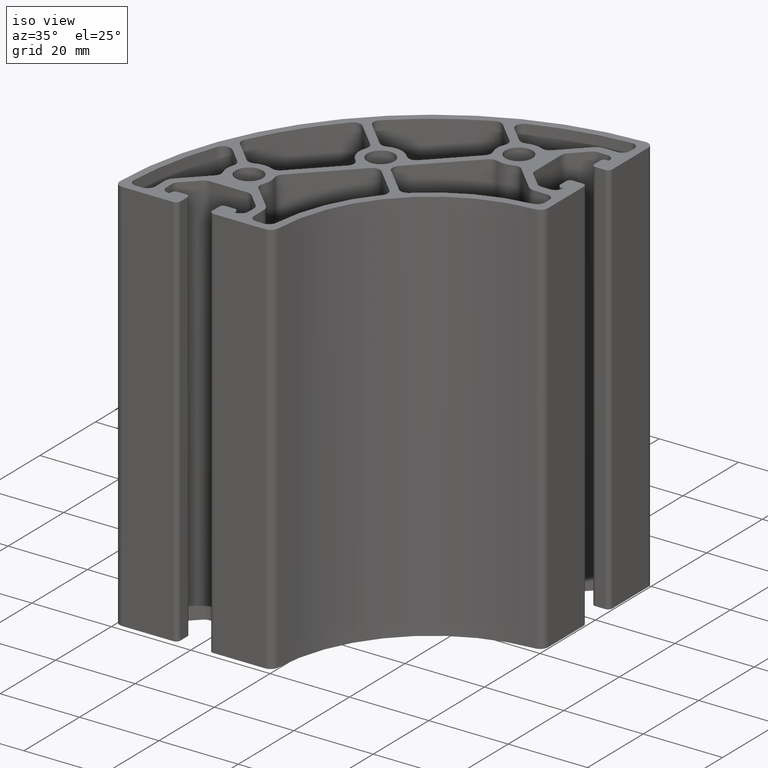
[diagram: clean part render]
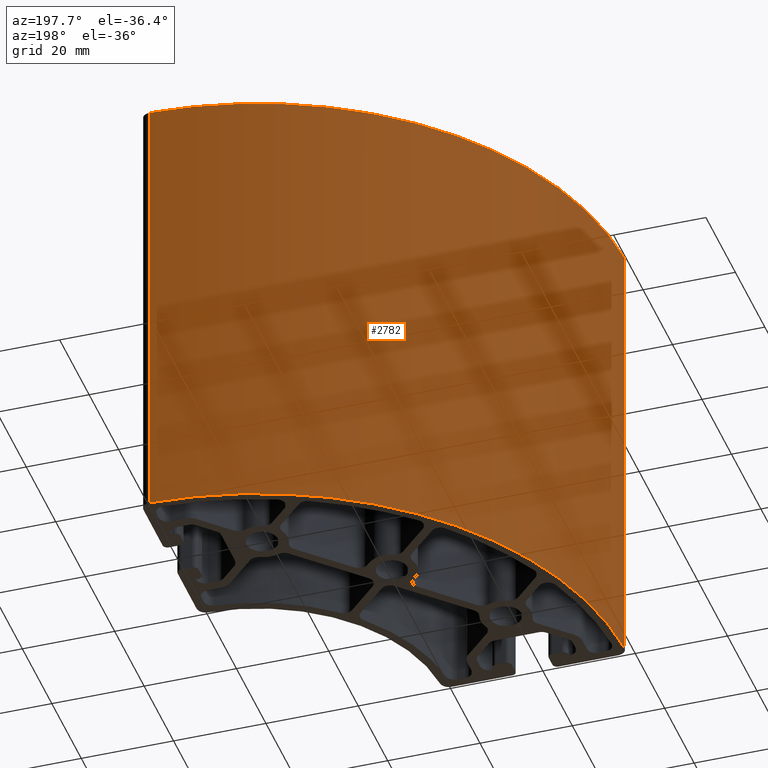
[diagram: tour spotlight — one face highlighted and labeled with its STEP entity id]
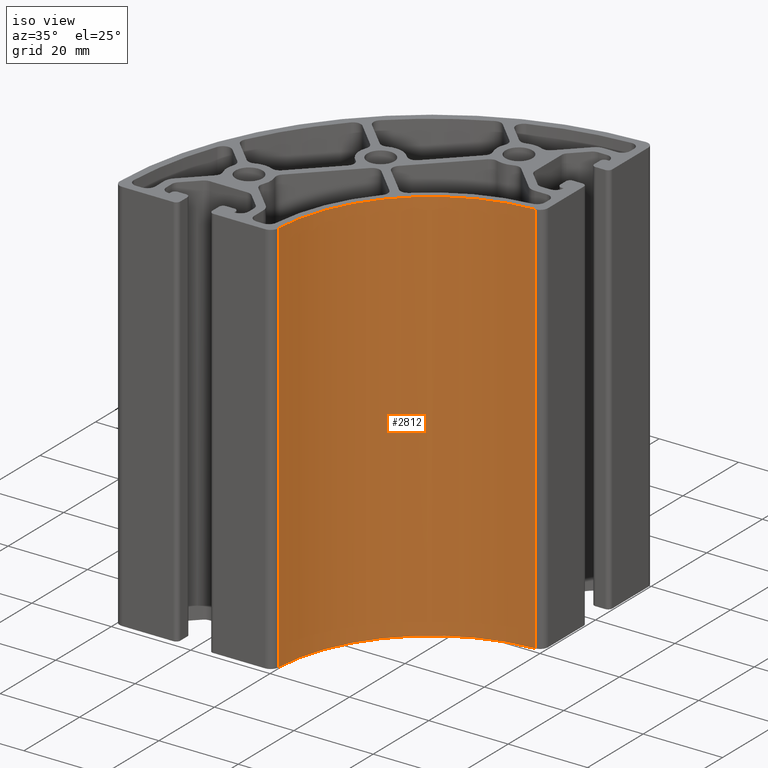
[diagram: tour spotlight — one face highlighted and labeled with its STEP entity id]
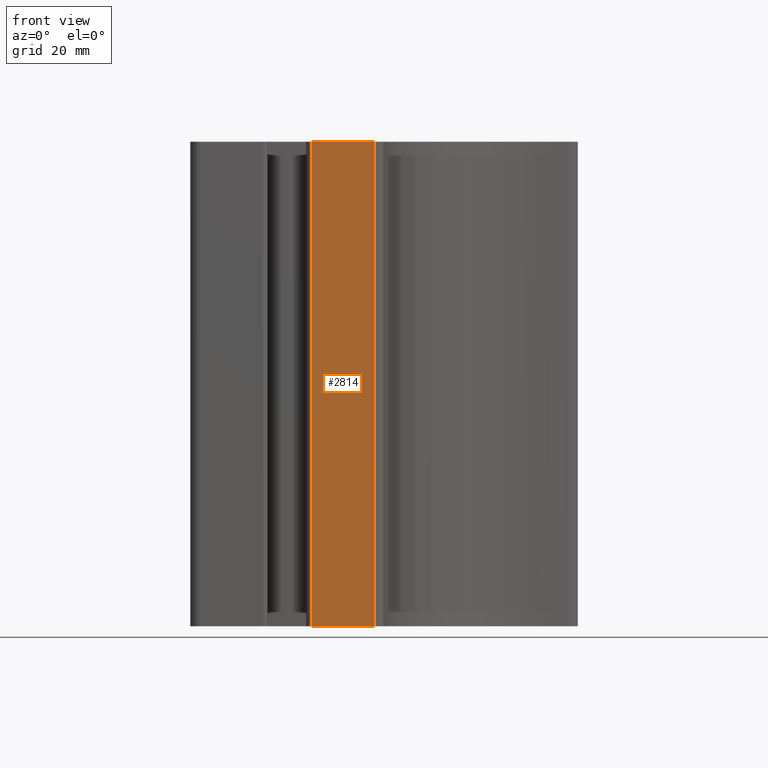
[diagram: tour spotlight — one face highlighted and labeled with its STEP entity id]
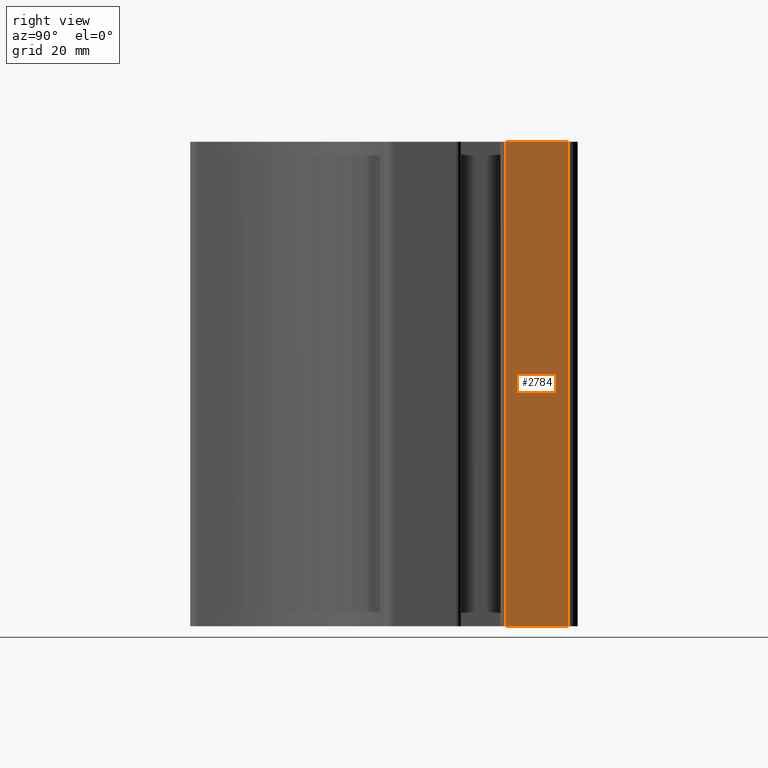
[diagram: tour spotlight — one face highlighted and labeled with its STEP entity id]
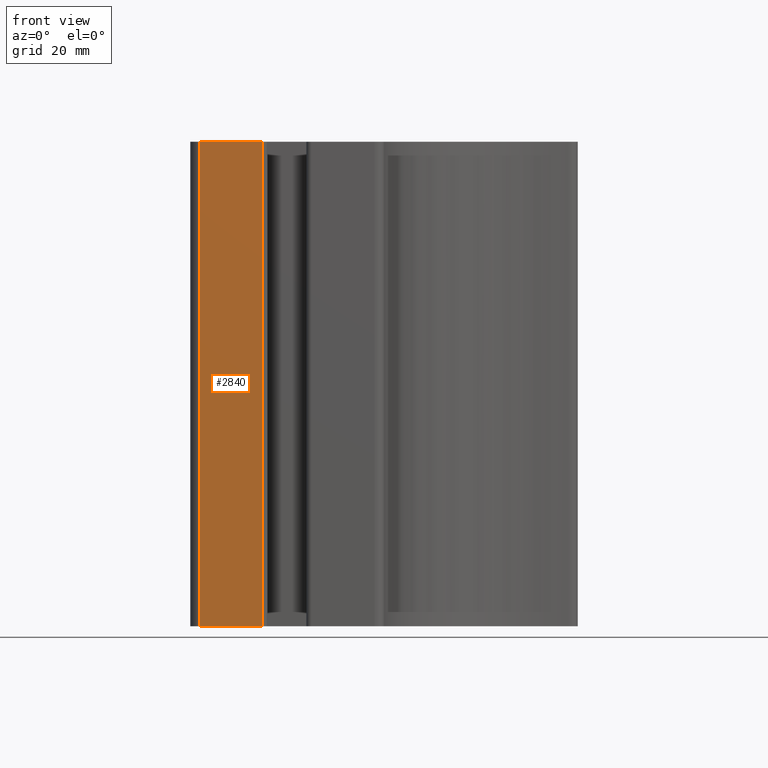
[diagram: tour spotlight — one face highlighted and labeled with its STEP entity id]
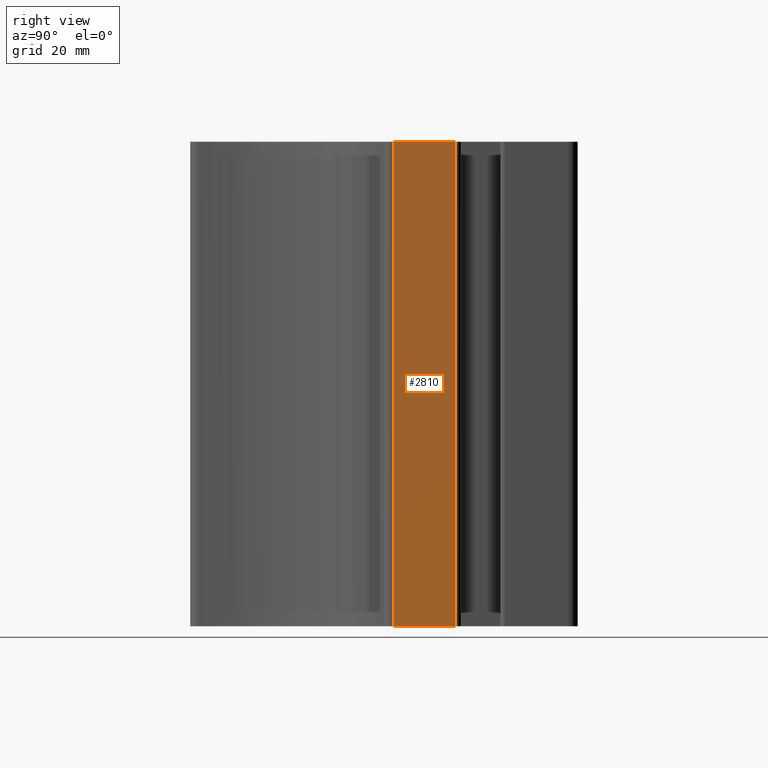
[diagram: tour spotlight — one face highlighted and labeled with its STEP entity id]
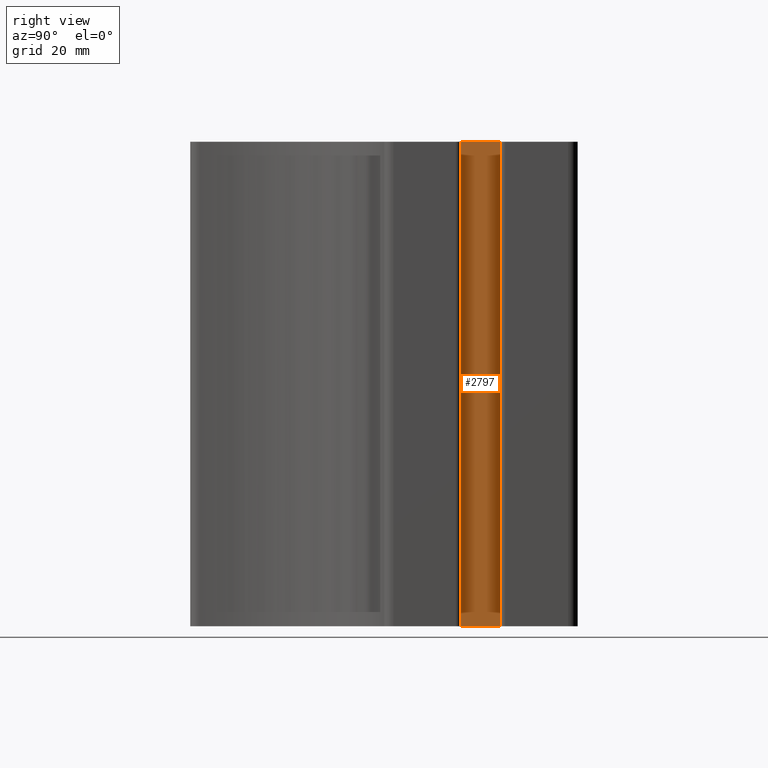
[diagram: tour spotlight — one face highlighted and labeled with its STEP entity id]
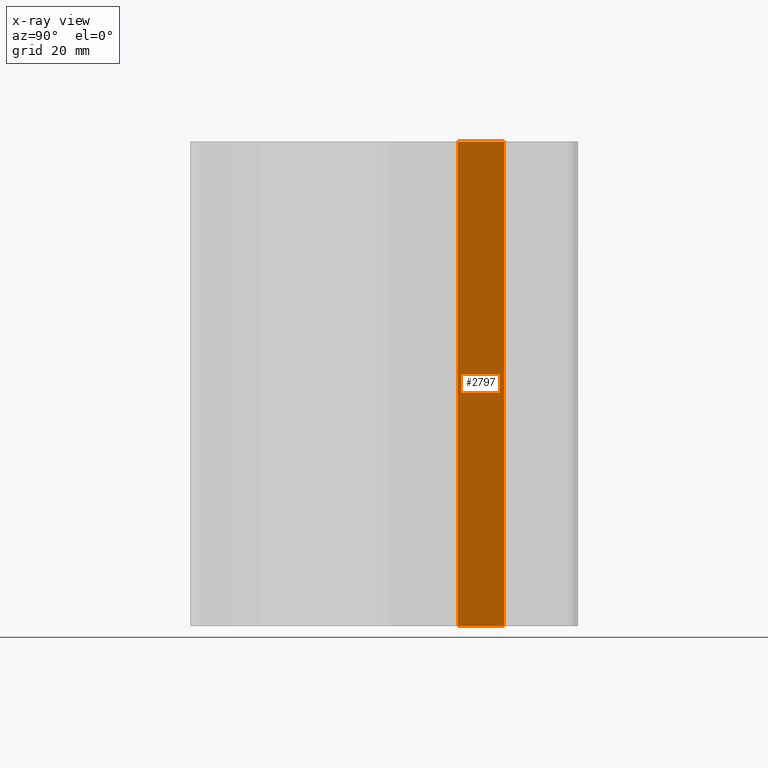
[diagram: x-ray of the same camera — body ghosted, this tour face saturated]
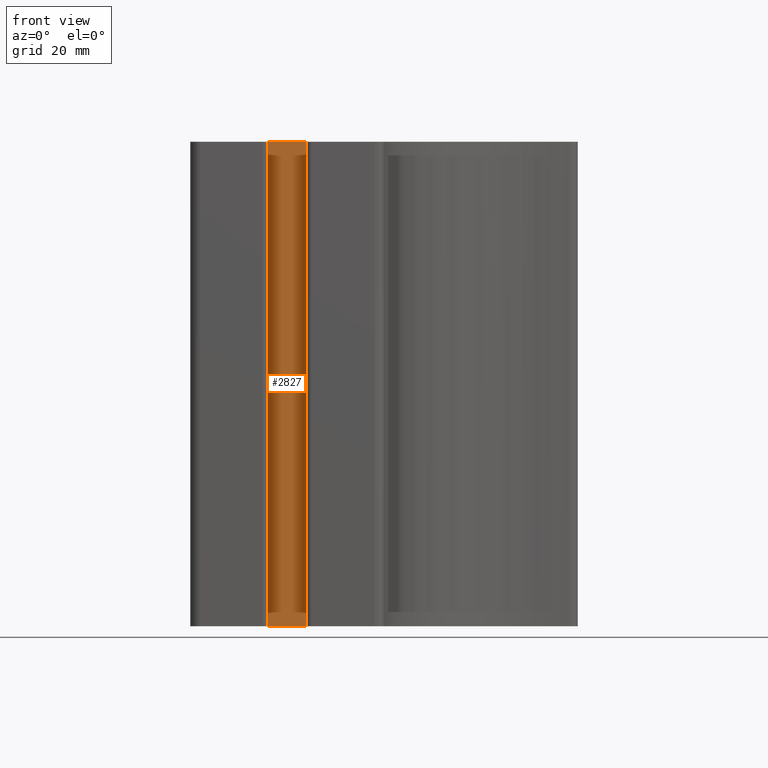
[diagram: tour spotlight — one face highlighted and labeled with its STEP entity id]
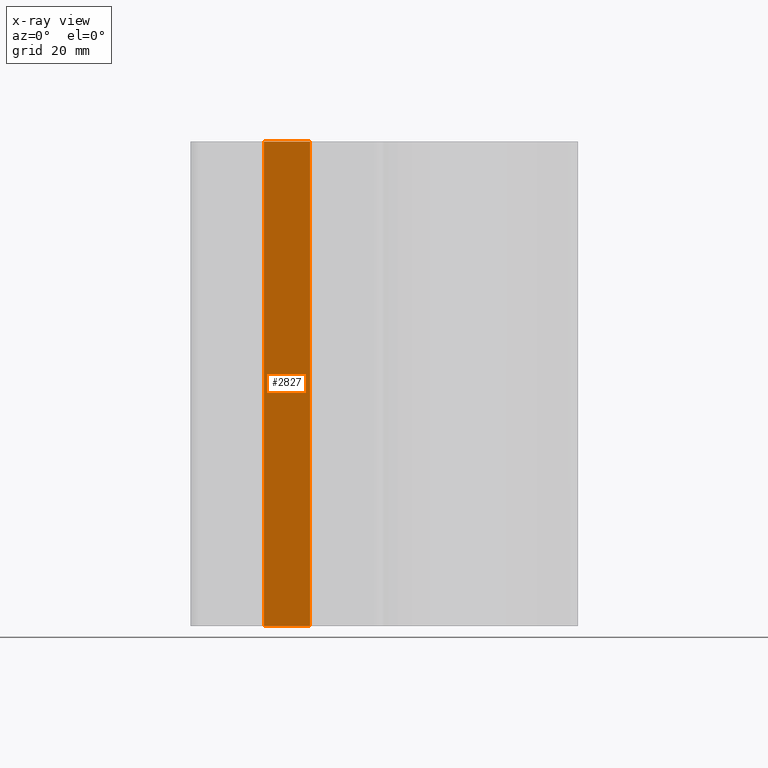
[diagram: x-ray of the same camera — body ghosted, this tour face saturated]
A machine part: a face-by-face anatomy tour. The part has 143 B-rep faces; the first image is the clean iso view, then the 8 largest visible faces are spotlighted one at a time (largest first), each with its STEP entity span.

Face 1 — auxiliary view, entity #2782. In plain terms, the highlighted cylindrical surface (partial cylindrical patch) has radius 80 mm, axis along (0, 0, 1).
Definition (entity closure, byte-faithful):
#150=CIRCLE('',#3044,79.9999999999985);
#151=CIRCLE('',#3045,79.9999999999985);
#266=CYLINDRICAL_SURFACE('',#3043,79.9999999999985);
#377=FACE_OUTER_BOUND('',#521,.T.);
#521=EDGE_LOOP('',(#2126,#2127,#2128,#2129));
#729=LINE('',#4540,#977);
#730=LINE('',#4546,#978);
#977=VECTOR('',#3689,100.);
#978=VECTOR('',#3696,100.);
#1259=VERTEX_POINT('',#4534);
#1261=VERTEX_POINT('',#4538);
#1262=VERTEX_POINT('',#4542);
#1263=VERTEX_POINT('',#4544);
#1623=EDGE_CURVE('',#1259,#1261,#729,.T.);
#1624=EDGE_CURVE('',#1259,#1262,#150,.T.);
#1625=EDGE_CURVE('',#1263,#1261,#151,.T.);
#1626=EDGE_CURVE('',#1262,#1263,#730,.T.);
#2126=ORIENTED_EDGE('',*,*,#1624,.F.);
#2127=ORIENTED_EDGE('',*,*,#1623,.T.);
#2128=ORIENTED_EDGE('',*,*,#1625,.F.);
#2129=ORIENTED_EDGE('',*,*,#1626,.F.);
#2782=ADVANCED_FACE('',(#377),#266,.T.);
#3043=AXIS2_PLACEMENT_3D('',#4541,#3690,#3691);
#3044=AXIS2_PLACEMENT_3D('',#4543,#3692,#3693);
#3045=AXIS2_PLACEMENT_3D('',#4545,#3694,#3695);
#3689=DIRECTION('',(0.,0.,1.));
#3690=DIRECTION('center_axis',(0.,0.,1.));
#3691=DIRECTION('ref_axis',(0.0258378402501432,-0.999666147276784,0.));
#3692=DIRECTION('center_axis',(0.,0.,-1.));
#3693=DIRECTION('ref_axis',(0.0258378402501432,-0.999666147276784,0.));
#3694=DIRECTION('center_axis',(0.,0.,1.));
#3695=DIRECTION('ref_axis',(0.0258378402501432,-0.999666147276784,0.));
#3696=DIRECTION('',(0.,0.,1.));
#4534=CARTESIAN_POINT('',(-37.5316414771536,-40.4148337507493,0.));
#4538=CARTESIAN_POINT('',(-37.5316414771536,-40.4148337507493,100.));
#4540=CARTESIAN_POINT('',(-37.5316414771536,-40.4148337507493,0.));
#4541=CARTESIAN_POINT('Origin',(42.4417621116551,-42.4775306313547,0.));
#4542=CARTESIAN_POINT('',(40.3747348916437,37.4957611507865,0.));
#4543=CARTESIAN_POINT('Origin',(42.4417621116551,-42.4775306313547,0.));
#4544=CARTESIAN_POINT('',(40.3747348916437,37.4957611507865,100.));
#4545=CARTESIAN_POINT('Origin',(42.4417621116551,-42.4775306313547,100.));
#4546=CARTESIAN_POINT('',(40.3747348916437,37.4957611507865,0.));

Face 2 — iso view, entity #2812. In plain terms, the highlighted cylindrical surface (partial cylindrical patch) has radius 40 mm, axis along (0, 0, 1).
Definition (entity closure, byte-faithful):
#180=CIRCLE('',#3104,40.);
#181=CIRCLE('',#3105,40.);
#281=CYLINDRICAL_SURFACE('',#3103,40.);
#407=FACE_OUTER_BOUND('',#551,.T.);
#551=EDGE_LOOP('',(#2246,#2247,#2248,#2249));
#789=LINE('',#4720,#1037);
#790=LINE('',#4726,#1038);
#1037=VECTOR('',#3869,100.);
#1038=VECTOR('',#3876,100.);
#1320=VERTEX_POINT('',#4716);
#1321=VERTEX_POINT('',#4718);
#1322=VERTEX_POINT('',#4722);
#1323=VERTEX_POINT('',#4724);
#1713=EDGE_CURVE('',#1320,#1321,#789,.T.);
#1714=EDGE_CURVE('',#1320,#1322,#180,.T.);
#1715=EDGE_CURVE('',#1323,#1321,#181,.T.);
#1716=EDGE_CURVE('',#1322,#1323,#790,.T.);
#2246=ORIENTED_EDGE('',*,*,#1714,.F.);
#2247=ORIENTED_EDGE('',*,*,#1713,.T.);
#2248=ORIENTED_EDGE('',*,*,#1715,.F.);
#2249=ORIENTED_EDGE('',*,*,#1716,.F.);
#2812=ADVANCED_FACE('',(#407),#281,.F.);
#3103=AXIS2_PLACEMENT_3D('',#4721,#3870,#3871);
#3104=AXIS2_PLACEMENT_3D('',#4723,#3872,#3873);
#3105=AXIS2_PLACEMENT_3D('',#4725,#3874,#3875);
#3869=DIRECTION('',(0.,0.,1.));
#3870=DIRECTION('center_axis',(0.,0.,1.));
#3871=DIRECTION('ref_axis',(-0.0479845656306172,0.99884807726763,0.));
#3872=DIRECTION('center_axis',(0.,0.,1.));
#3873=DIRECTION('ref_axis',(-0.0479845656306172,0.99884807726763,0.));
#3874=DIRECTION('center_axis',(0.,0.,-1.));
#3875=DIRECTION('ref_axis',(-0.0479845656306172,0.99884807726763,0.));
#3876=DIRECTION('',(0.,0.,1.));
#4716=CARTESIAN_POINT('',(40.5223794864304,-2.52360754064946,0.));
#4718=CARTESIAN_POINT('',(40.5223794864304,-2.52360754064946,100.));
#4720=CARTESIAN_POINT('',(40.5223794864304,-2.52360754064946,0.));
#4721=CARTESIAN_POINT('Origin',(42.4417621116551,-42.4775306313547,0.));
#4722=CARTESIAN_POINT('',(2.48764605386844,-40.5621690360114,0.));
#4723=CARTESIAN_POINT('Origin',(42.4417621116551,-42.4775306313547,0.));
#4724=CARTESIAN_POINT('',(2.48764605386844,-40.5621690360114,100.));
#4725=CARTESIAN_POINT('Origin',(42.4417621116551,-42.4775306313547,100.));
#4726=CARTESIAN_POINT('',(2.48764605386844,-40.5621690360114,0.));

Face 3 — front view, entity #2814. In plain terms, the highlighted planar face has unit normal (-0, -1, 0).
Definition (entity closure, byte-faithful):
#409=FACE_OUTER_BOUND('',#553,.T.);
#553=EDGE_LOOP('',(#2254,#2255,#2256,#2257));
#791=LINE('',#4732,#1039);
#792=LINE('',#4735,#1040);
#793=LINE('',#4737,#1041);
#794=LINE('',#4738,#1042);
#1039=VECTOR('',#3883,100.);
#1040=VECTOR('',#3886,13.0464715569881);
#1041=VECTOR('',#3887,13.0464715569881);
#1042=VECTOR('',#3888,100.);
#1324=VERTEX_POINT('',#4728);
#1325=VERTEX_POINT('',#4730);
#1326=VERTEX_POINT('',#4734);
#1327=VERTEX_POINT('',#4736);
#1719=EDGE_CURVE('',#1324,#1325,#791,.T.);
#1720=EDGE_CURVE('',#1324,#1326,#792,.T.);
#1721=EDGE_CURVE('',#1327,#1325,#793,.T.);
#1722=EDGE_CURVE('',#1326,#1327,#794,.T.);
#2254=ORIENTED_EDGE('',*,*,#1720,.F.);
#2255=ORIENTED_EDGE('',*,*,#1719,.T.);
#2256=ORIENTED_EDGE('',*,*,#1721,.F.);
#2257=ORIENTED_EDGE('',*,*,#1722,.F.);
#2683=PLANE('',#3109);
#2814=ADVANCED_FACE('',(#409),#2683,.T.);
#3109=AXIS2_PLACEMENT_3D('',#4733,#3884,#3885);
#3883=DIRECTION('',(0.,0.,1.));
#3884=DIRECTION('center_axis',(-6.80780558805105E-16,-1.,0.));
#3885=DIRECTION('ref_axis',(1.,-7.105427357601E-16,0.));
#3886=DIRECTION('',(-1.,6.80780558805105E-16,0.));
#3887=DIRECTION('',(1.,-6.80780558805105E-16,0.));
#3888=DIRECTION('',(0.,0.,1.));
#4728=CARTESIAN_POINT('',(0.489943186753274,-42.4663981578367,0.));
#4730=CARTESIAN_POINT('',(0.489943186753274,-42.4663981578367,100.));
#4732=CARTESIAN_POINT('',(0.489943186753274,-42.4663981578367,0.));
#4733=CARTESIAN_POINT('Origin',(-12.5565283702348,-42.4663981578367,0.));
#4734=CARTESIAN_POINT('',(-12.5565283702348,-42.4663981578367,0.));
#4735=CARTESIAN_POINT('',(0.489943186753274,-42.4663981578367,0.));
#4736=CARTESIAN_POINT('',(-12.5565283702348,-42.4663981578367,100.));
#4737=CARTESIAN_POINT('',(0.489943186753274,-42.4663981578367,100.));
#4738=CARTESIAN_POINT('',(-12.5565283702348,-42.4663981578367,0.));

Face 4 — right view, entity #2784. In plain terms, the highlighted planar face has unit normal (1, 0, 0).
Definition (entity closure, byte-faithful):
#379=FACE_OUTER_BOUND('',#523,.T.);
#523=EDGE_LOOP('',(#2134,#2135,#2136,#2137));
#731=LINE('',#4552,#979);
#732=LINE('',#4555,#980);
#733=LINE('',#4557,#981);
#734=LINE('',#4558,#982);
#979=VECTOR('',#3703,100.);
#980=VECTOR('',#3706,12.9591205125071);
#981=VECTOR('',#3707,12.9591205125071);
#982=VECTOR('',#3708,100.);
#1264=VERTEX_POINT('',#4548);
#1265=VERTEX_POINT('',#4550);
#1266=VERTEX_POINT('',#4554);
#1267=VERTEX_POINT('',#4556);
#1629=EDGE_CURVE('',#1264,#1265,#731,.T.);
#1630=EDGE_CURVE('',#1264,#1266,#732,.T.);
#1631=EDGE_CURVE('',#1267,#1265,#733,.T.);
#1632=EDGE_CURVE('',#1266,#1267,#734,.T.);
#2134=ORIENTED_EDGE('',*,*,#1630,.F.);
#2135=ORIENTED_EDGE('',*,*,#1629,.T.);
#2136=ORIENTED_EDGE('',*,*,#1631,.F.);
#2137=ORIENTED_EDGE('',*,*,#1632,.F.);
#2668=PLANE('',#3049);
#2784=ADVANCED_FACE('',(#379),#2668,.T.);
#3049=AXIS2_PLACEMENT_3D('',#4553,#3704,#3705);
#3703=DIRECTION('',(0.,0.,1.));
#3704=DIRECTION('center_axis',(1.,0.,0.));
#3705=DIRECTION('ref_axis',(0.,1.,0.));
#3706=DIRECTION('',(0.,-1.,0.));
#3707=DIRECTION('',(0.,1.,0.));
#3708=DIRECTION('',(0.,0.,1.));
#4548=CARTESIAN_POINT('',(42.4264075570571,35.4964317943973,0.));
#4550=CARTESIAN_POINT('',(42.4264075570571,35.4964317943973,100.));
#4552=CARTESIAN_POINT('',(42.4264075570571,35.4964317943973,0.));
#4553=CARTESIAN_POINT('Origin',(42.4264075570571,22.5373112818901,0.));
#4554=CARTESIAN_POINT('',(42.4264075570571,22.5373112818901,0.));
#4555=CARTESIAN_POINT('',(42.4264075570571,35.4964317943973,0.));
#4556=CARTESIAN_POINT('',(42.4264075570571,22.5373112818901,100.));
#4557=CARTESIAN_POINT('',(42.4264075570571,35.4964317943973,100.));
#4558=CARTESIAN_POINT('',(42.4264075570571,22.5373112818901,0.));

Face 5 — front view, entity #2840. In plain terms, the highlighted planar face has unit normal (0, -1, 0).
Definition (entity closure, byte-faithful):
#435=FACE_OUTER_BOUND('',#579,.T.);
#579=EDGE_LOOP('',(#2358,#2359,#2360,#2361));
#728=LINE('',#4537,#976);
#845=LINE('',#4888,#1093);
#846=LINE('',#4890,#1094);
#847=LINE('',#4891,#1095);
#976=VECTOR('',#3686,100.);
#1093=VECTOR('',#4037,100.);
#1094=VECTOR('',#4040,12.8909712933489);
#1095=VECTOR('',#4041,12.8909712933489);
#1258=VERTEX_POINT('',#4533);
#1260=VERTEX_POINT('',#4536);
#1376=VERTEX_POINT('',#4884);
#1377=VERTEX_POINT('',#4886);
#1621=EDGE_CURVE('',#1258,#1260,#728,.T.);
#1797=EDGE_CURVE('',#1376,#1377,#845,.T.);
#1798=EDGE_CURVE('',#1376,#1258,#846,.T.);
#1799=EDGE_CURVE('',#1260,#1377,#847,.T.);
#2358=ORIENTED_EDGE('',*,*,#1798,.F.);
#2359=ORIENTED_EDGE('',*,*,#1797,.T.);
#2360=ORIENTED_EDGE('',*,*,#1799,.F.);
#2361=ORIENTED_EDGE('',*,*,#1621,.F.);
#2697=PLANE('',#3159);
#2840=ADVANCED_FACE('',(#435),#2697,.T.);
#3159=AXIS2_PLACEMENT_3D('',#4889,#4038,#4039);
#3686=DIRECTION('',(0.,0.,1.));
#4037=DIRECTION('',(0.,0.,1.));
#4038=DIRECTION('center_axis',(6.88992628630224E-16,-1.,0.));
#4039=DIRECTION('ref_axis',(1.,7.105427357601E-16,0.));
#4040=DIRECTION('',(-1.,-6.88992628630224E-16,0.));
#4041=DIRECTION('',(1.,6.88992628630224E-16,0.));
#4533=CARTESIAN_POINT('',(-35.532309325602,-42.4663981578367,0.));
#4536=CARTESIAN_POINT('',(-35.532309325602,-42.4663981578367,100.));
#4537=CARTESIAN_POINT('',(-35.532309325602,-42.4663981578367,0.));
#4884=CARTESIAN_POINT('',(-22.6413380322531,-42.4663981578367,0.));
#4886=CARTESIAN_POINT('',(-22.6413380322531,-42.4663981578367,100.));
#4888=CARTESIAN_POINT('',(-22.6413380322531,-42.4663981578367,0.));
#4889=CARTESIAN_POINT('Origin',(-35.532309325602,-42.4663981578367,0.));
#4890=CARTESIAN_POINT('',(-22.6413380322531,-42.4663981578367,0.));
#4891=CARTESIAN_POINT('',(-22.6413380322531,-42.4663981578367,100.));

Face 6 — right view, entity #2810. In plain terms, the highlighted planar face has unit normal (1, 0, 0).
Definition (entity closure, byte-faithful):
#405=FACE_OUTER_BOUND('',#549,.T.);
#549=EDGE_LOOP('',(#2238,#2239,#2240,#2241));
#785=LINE('',#4708,#1033);
#786=LINE('',#4711,#1034);
#787=LINE('',#4713,#1035);
#788=LINE('',#4714,#1036);
#1033=VECTOR('',#3857,100.);
#1034=VECTOR('',#3860,12.8601149589288);
#1035=VECTOR('',#3861,12.8601149589288);
#1036=VECTOR('',#3862,100.);
#1316=VERTEX_POINT('',#4704);
#1317=VERTEX_POINT('',#4706);
#1318=VERTEX_POINT('',#4710);
#1319=VERTEX_POINT('',#4712);
#1707=EDGE_CURVE('',#1316,#1317,#785,.T.);
#1708=EDGE_CURVE('',#1316,#1318,#786,.T.);
#1709=EDGE_CURVE('',#1319,#1317,#787,.T.);
#1710=EDGE_CURVE('',#1318,#1319,#788,.T.);
#2238=ORIENTED_EDGE('',*,*,#1708,.F.);
#2239=ORIENTED_EDGE('',*,*,#1707,.T.);
#2240=ORIENTED_EDGE('',*,*,#1709,.F.);
#2241=ORIENTED_EDGE('',*,*,#1710,.F.);
#2682=PLANE('',#3099);
#2810=ADVANCED_FACE('',(#405),#2682,.T.);
#3099=AXIS2_PLACEMENT_3D('',#4709,#3858,#3859);
#3857=DIRECTION('',(0.,0.,1.));
#3858=DIRECTION('center_axis',(1.,1.38129157093337E-15,0.));
#3859=DIRECTION('ref_axis',(-1.4210854715202E-15,1.,0.));
#3860=DIRECTION('',(1.38129157093337E-15,-1.,0.));
#3861=DIRECTION('',(-1.38129157093337E-15,1.,0.));
#3862=DIRECTION('',(0.,0.,1.));
#4704=CARTESIAN_POINT('',(42.4264075570571,12.3342006370546,0.));
#4706=CARTESIAN_POINT('',(42.4264075570571,12.3342006370546,100.));
#4708=CARTESIAN_POINT('',(42.4264075570571,12.3342006370546,0.));
#4709=CARTESIAN_POINT('Origin',(42.4264075570572,-0.525914321874188,0.));
#4710=CARTESIAN_POINT('',(42.4264075570572,-0.525914321874188,0.));
#4711=CARTESIAN_POINT('',(42.4264075570571,12.3342006370546,0.));
#4712=CARTESIAN_POINT('',(42.4264075570571,-0.525914321874188,100.));
#4713=CARTESIAN_POINT('',(42.4264075570571,12.3342006370546,100.));
#4714=CARTESIAN_POINT('',(42.4264075570572,-0.525914321874188,0.));

Face 7 — right view, entity #2797. An x-ray twin of the same camera follows (body ghosted, this face saturated) — the face is partly hidden behind the body. In plain terms, the highlighted planar face has unit normal (1, 0, 0).
Definition (entity closure, byte-faithful):
#392=FACE_OUTER_BOUND('',#536,.T.);
#536=EDGE_LOOP('',(#2186,#2187,#2188,#2189));
#758=LINE('',#4630,#1006);
#759=LINE('',#4633,#1007);
#760=LINE('',#4635,#1008);
#761=LINE('',#4636,#1009);
#1006=VECTOR('',#3780,100.);
#1007=VECTOR('',#3783,9.5574038813049);
#1008=VECTOR('',#3784,9.5574038813049);
#1009=VECTOR('',#3785,100.);
#1290=VERTEX_POINT('',#4626);
#1291=VERTEX_POINT('',#4628);
#1292=VERTEX_POINT('',#4632);
#1293=VERTEX_POINT('',#4634);
#1668=EDGE_CURVE('',#1290,#1291,#758,.T.);
#1669=EDGE_CURVE('',#1290,#1292,#759,.T.);
#1670=EDGE_CURVE('',#1293,#1291,#760,.T.);
#1671=EDGE_CURVE('',#1292,#1293,#761,.T.);
#2186=ORIENTED_EDGE('',*,*,#1669,.F.);
#2187=ORIENTED_EDGE('',*,*,#1668,.T.);
#2188=ORIENTED_EDGE('',*,*,#1670,.F.);
#2189=ORIENTED_EDGE('',*,*,#1671,.F.);
#2675=PLANE('',#3074);
#2797=ADVANCED_FACE('',(#392),#2675,.T.);
#3074=AXIS2_PLACEMENT_3D('',#4631,#3781,#3782);
#3780=DIRECTION('',(0.,0.,1.));
#3781=DIRECTION('center_axis',(1.,0.,0.));
#3782=DIRECTION('ref_axis',(0.,1.,0.));
#3783=DIRECTION('',(0.,-1.,0.));
#3784=DIRECTION('',(0.,1.,0.));
#3785=DIRECTION('',(0.,0.,1.));
#4626=CARTESIAN_POINT('',(29.8006114205585,22.3116825761493,0.));
#4628=CARTESIAN_POINT('',(29.8006114205585,22.3116825761493,100.));
#4630=CARTESIAN_POINT('',(29.8006114205585,22.3116825761493,0.));
#4631=CARTESIAN_POINT('Origin',(29.8006114205585,12.7542786948444,0.));
#4632=CARTESIAN_POINT('',(29.8006114205585,12.7542786948444,0.));
#4633=CARTESIAN_POINT('',(29.8006114205585,22.3116825761493,0.));
#4634=CARTESIAN_POINT('',(29.8006114205585,12.7542786948444,100.));
#4635=CARTESIAN_POINT('',(29.8006114205585,22.3116825761493,100.));
#4636=CARTESIAN_POINT('',(29.8006114205585,12.7542786948444,0.));

Face 8 — front view, entity #2827. An x-ray twin of the same camera follows (body ghosted, this face saturated) — the face is partly hidden behind the body. In plain terms, the highlighted planar face has unit normal (0, -1, 0).
Definition (entity closure, byte-faithful):
#422=FACE_OUTER_BOUND('',#566,.T.);
#566=EDGE_LOOP('',(#2306,#2307,#2308,#2309));
#818=LINE('',#4810,#1066);
#819=LINE('',#4813,#1067);
#820=LINE('',#4815,#1068);
#821=LINE('',#4816,#1069);
#1066=VECTOR('',#3960,100.);
#1067=VECTOR('',#3963,9.54656334314209);
#1068=VECTOR('',#3964,9.54656334314209);
#1069=VECTOR('',#3965,100.);
#1350=VERTEX_POINT('',#4806);
#1351=VERTEX_POINT('',#4808);
#1352=VERTEX_POINT('',#4812);
#1353=VERTEX_POINT('',#4814);
#1758=EDGE_CURVE('',#1350,#1351,#818,.T.);
#1759=EDGE_CURVE('',#1350,#1352,#819,.T.);
#1760=EDGE_CURVE('',#1353,#1351,#820,.T.);
#1761=EDGE_CURVE('',#1352,#1353,#821,.T.);
#2306=ORIENTED_EDGE('',*,*,#1759,.F.);
#2307=ORIENTED_EDGE('',*,*,#1758,.T.);
#2308=ORIENTED_EDGE('',*,*,#1760,.F.);
#2309=ORIENTED_EDGE('',*,*,#1761,.F.);
#2690=PLANE('',#3134);
#2827=ADVANCED_FACE('',(#422),#2690,.T.);
#3134=AXIS2_PLACEMENT_3D('',#4811,#3961,#3962);
#3960=DIRECTION('',(0.,0.,1.));
#3961=DIRECTION('center_axis',(0.,-1.,0.));
#3962=DIRECTION('ref_axis',(1.,0.,0.));
#3963=DIRECTION('',(-1.,0.,0.));
#3964=DIRECTION('',(1.,0.,0.));
#3965=DIRECTION('',(0.,0.,1.));
#4806=CARTESIAN_POINT('',(-12.8023552212264,-29.8360015711126,0.));
#4808=CARTESIAN_POINT('',(-12.8023552212264,-29.8360015711126,100.));
#4810=CARTESIAN_POINT('',(-12.8023552212264,-29.8360015711126,0.));
#4811=CARTESIAN_POINT('Origin',(-22.3489185643685,-29.8360015711126,0.));
#4812=CARTESIAN_POINT('',(-22.3489185643685,-29.8360015711126,0.));
#4813=CARTESIAN_POINT('',(-12.8023552212264,-29.8360015711126,0.));
#4814=CARTESIAN_POINT('',(-22.3489185643685,-29.8360015711126,100.));
#4815=CARTESIAN_POINT('',(-12.8023552212264,-29.8360015711126,100.));
#4816=CARTESIAN_POINT('',(-22.3489185643685,-29.8360015711126,0.));